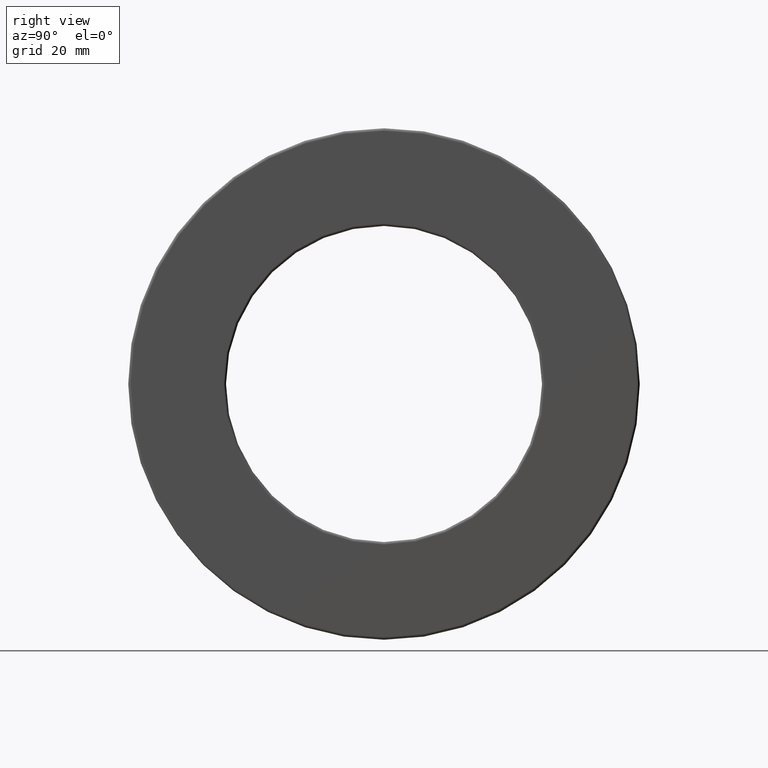
[diagram: clean part render]
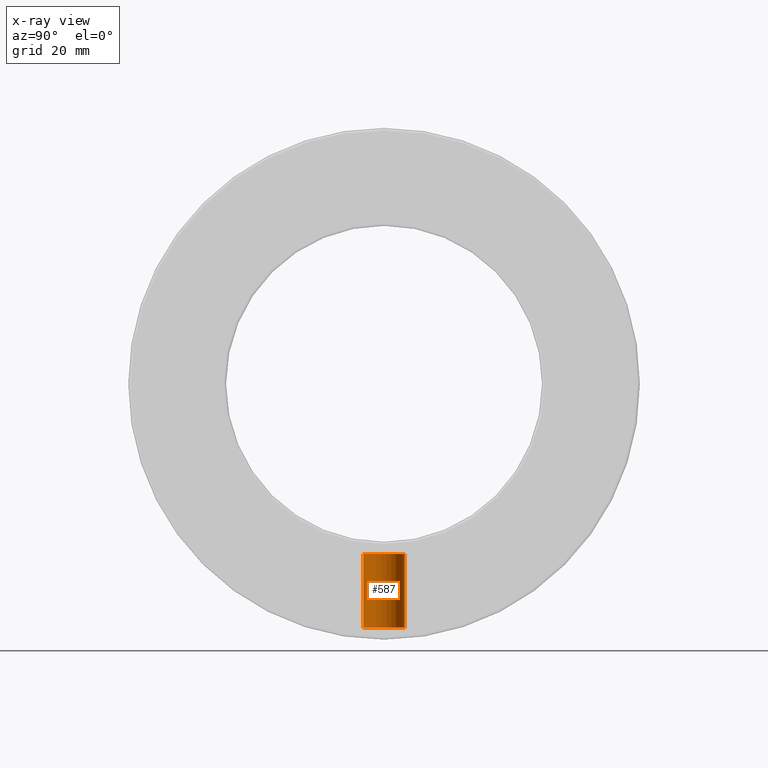
[diagram: x-ray — body ghosted, one internal face saturated and labeled with its STEP entity id]
A machine part, right view, then the same camera in x-ray: the body is ghosted and one INTERNAL B-rep face — a face not visible from any outside direction — is saturated and labeled: STEP entity #587.
In plain terms, the highlighted cylindrical surface (bore or boss wall) has radius 3.9624 mm, axis along (0, -0, -1).
Its self-contained STEP definition (entity closure, byte-faithful):
#27 = AXIS2_PLACEMENT_3D ( 'NONE', #570, #470, #358 ) ;
#55 = CARTESIAN_POINT ( 'NONE',  ( 0.0000000000000000000, 0.1559999999999953900, -1.277500000000000300 ) ) ;
#299 = DIRECTION ( 'NONE',  ( 0.0000000000000000000, 1.000000000000000000, -3.491481338843133000E-015 ) ) ;
#358 = DIRECTION ( 'NONE',  ( 0.0000000000000000000, 1.000000000000000000, -3.502369222646494500E-015 ) ) ;
#470 = DIRECTION ( 'NONE',  ( 0.0000000000000000000, -3.491481338843133400E-015, -1.000000000000000000 ) ) ;
#486 = DIRECTION ( 'NONE',  ( 0.0000000000000000000, -3.491481338843133400E-015, -1.000000000000000000 ) ) ;
#570 = CARTESIAN_POINT ( 'NONE',  ( 0.0000000000000000000, -4.460367410372101800E-015, -1.277499999999999600 ) ) ;
#587 = ADVANCED_FACE ( 'NONE', ( #1132, #885 ), #1400, .T. ) ;
#604 = AXIS2_PLACEMENT_3D ( 'NONE', #764, #985, #299 ) ;
#716 = CIRCLE ( 'NONE', #1303, 0.1559999999999998600 ) ;
#764 = CARTESIAN_POINT ( 'NONE',  ( 0.0000000000000000000, 0.0000000000000000000, 0.0000000000000000000 ) ) ;
#794 = VERTEX_POINT ( 'NONE', #55 ) ;
#860 = ORIENTED_EDGE ( 'NONE', *, *, #1146, .F. ) ;
#863 = EDGE_LOOP ( 'NONE', ( #860 ) ) ;
#885 = FACE_OUTER_BOUND ( 'NONE', #863, .T. ) ;
#935 = EDGE_CURVE ( 'NONE', #794, #794, #1050, .T. ) ;
#985 = DIRECTION ( 'NONE',  ( 0.0000000000000000000, -3.491481338843133400E-015, -1.000000000000000000 ) ) ;
#1050 = CIRCLE ( 'NONE', #27, 0.1559999999999998600 ) ;
#1052 = DIRECTION ( 'NONE',  ( 0.0000000000000000000, 1.000000000000000000, -3.502369222646494500E-015 ) ) ;
#1077 = CARTESIAN_POINT ( 'NONE',  ( 0.0000000000000000000, 0.1559999999999934800, -1.831875000000000800 ) ) ;
#1132 = FACE_OUTER_BOUND ( 'NONE', #1178, .T. ) ;
#1146 = EDGE_CURVE ( 'NONE', #1420, #1420, #716, .T. ) ;
#1178 = EDGE_LOOP ( 'NONE', ( #1455 ) ) ;
#1303 = AXIS2_PLACEMENT_3D ( 'NONE', #1395, #486, #1052 ) ;
#1395 = CARTESIAN_POINT ( 'NONE',  ( 0.0000000000000000000, -6.395957377593266200E-015, -1.831875000000000100 ) ) ;
#1400 = CYLINDRICAL_SURFACE ( 'NONE', #604, 0.1559999999999998600 ) ;
#1420 = VERTEX_POINT ( 'NONE', #1077 ) ;
#1455 = ORIENTED_EDGE ( 'NONE', *, *, #935, .T. ) ;